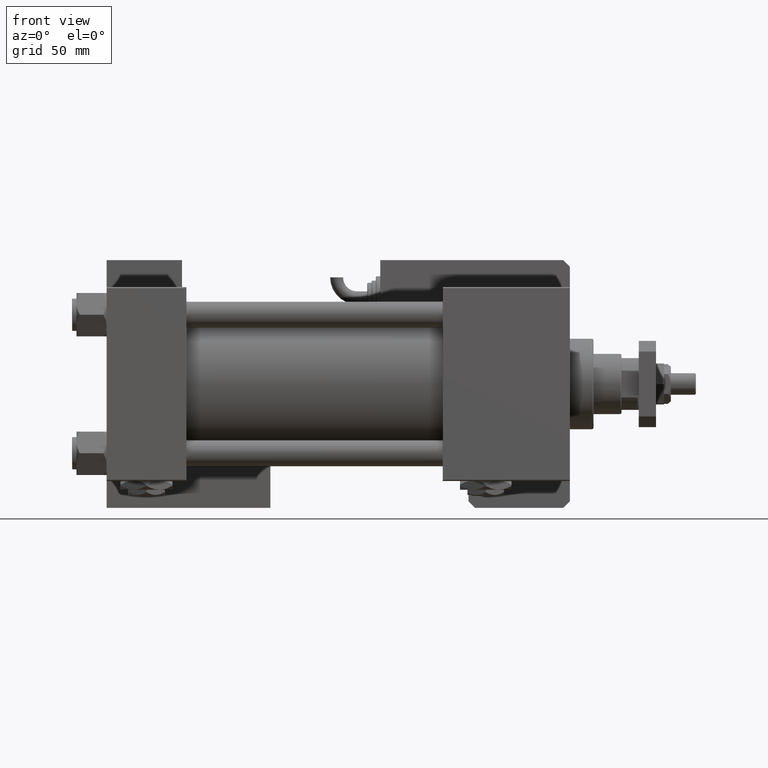
[diagram: clean part render]
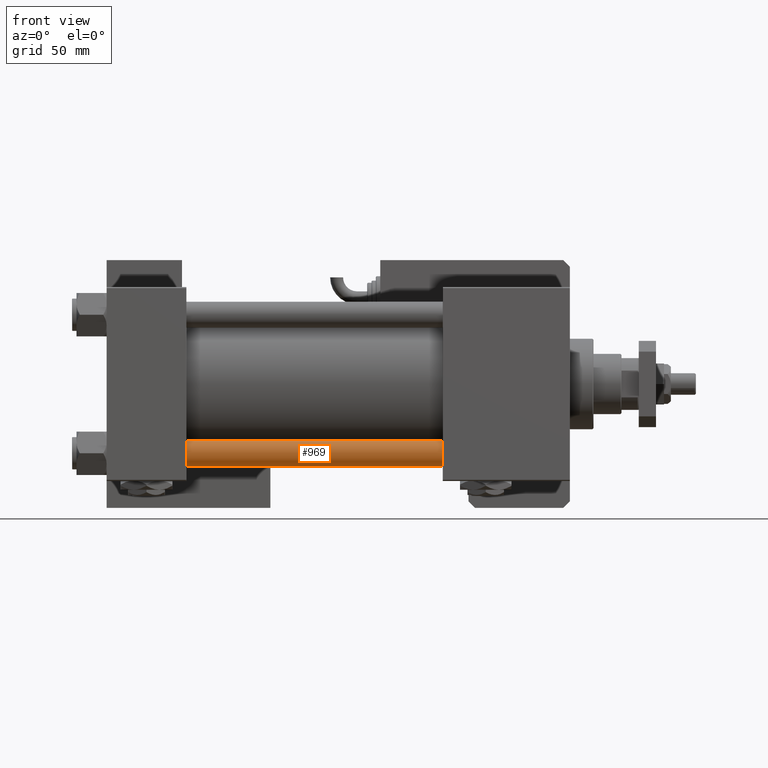
[diagram: same view with one face highlighted and labeled with its STEP entity id]
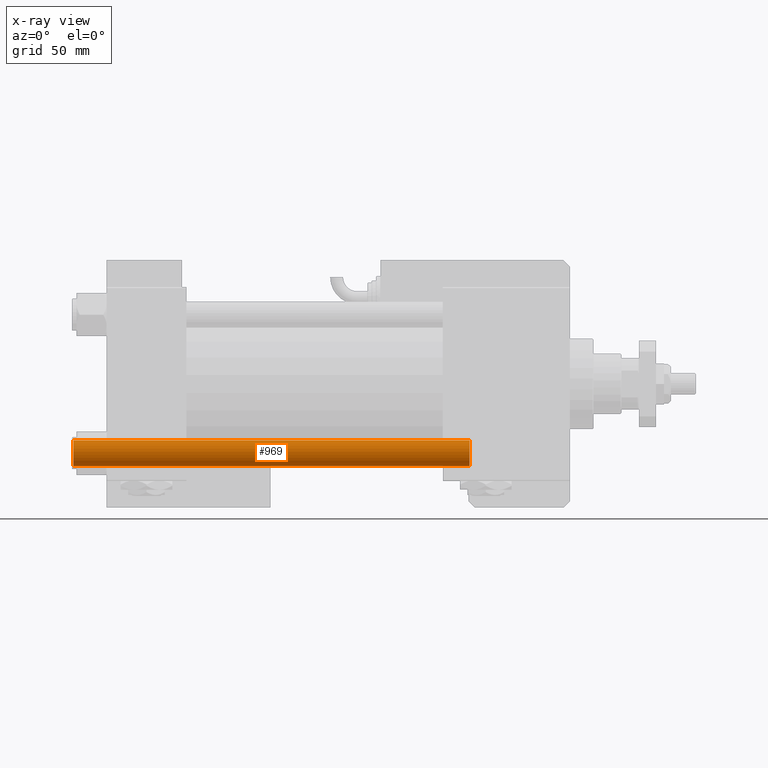
[diagram: x-ray of the same camera — body ghosted, the highlighted face saturated]
A machine part, front view. The second image highlights one B-rep face of the part: STEP entity #969.
The next image is the same camera in x-ray: the body ghosted, the highlighted face saturated — about 0% of this face is hidden behind the body in this view.
In plain terms, the highlighted cylindrical surface (edge-blend (fillet) strip) has radius 6 mm, axis along (-1, 0, -0).
Its self-contained STEP definition (entity closure, byte-faithful):
#273 = EDGE_CURVE ( 'NONE', #46230, #4033, #28328, .T. ) ;
#969 = ADVANCED_FACE ( 'NONE', ( #57112 ), #3448, .T. ) ;
#1033 = VECTOR ( 'NONE', #37409, 1000.000000000000000 ) ;
#1636 = CARTESIAN_POINT ( 'NONE',  ( 6.000000000000000888, 7.347880794884120722E-16, 185.0000000000000000 ) ) ;
#3239 = CARTESIAN_POINT ( 'NONE',  ( -6.000000000000000888, 0.000000000000000000, 184.5000000000000000 ) ) ;
#3448 = CYLINDRICAL_SURFACE ( 'NONE', #49821, 6.000000000000000888 ) ;
#3942 = ORIENTED_EDGE ( 'NONE', *, *, #21996, .T. ) ;
#4033 = VERTEX_POINT ( 'NONE', #22711 ) ;
#9245 = DIRECTION ( 'NONE',  ( -0.000000000000000000, -0.000000000000000000, 1.000000000000000000 ) ) ;
#10442 = AXIS2_PLACEMENT_3D ( 'NONE', #48847, #9245, #13348 ) ;
#11071 = EDGE_LOOP ( 'NONE', ( #3942, #42876, #15943, #24573 ) ) ;
#13348 = DIRECTION ( 'NONE',  ( 1.000000000000000000, 0.000000000000000000, 0.000000000000000000 ) ) ;
#14567 = EDGE_CURVE ( 'NONE', #46623, #27695, #48380, .T. ) ;
#15943 = ORIENTED_EDGE ( 'NONE', *, *, #34304, .T. ) ;
#21996 = EDGE_CURVE ( 'NONE', #46623, #46230, #50328, .T. ) ;
#22237 = CARTESIAN_POINT ( 'NONE',  ( -6.000000000000000888, 0.000000000000000000, 185.0000000000000000 ) ) ;
#22711 = CARTESIAN_POINT ( 'NONE',  ( 6.000000000000000888, 7.347880794884120722E-16, 0.5000000000000281997 ) ) ;
#24573 = ORIENTED_EDGE ( 'NONE', *, *, #14567, .F. ) ;
#26016 = DIRECTION ( 'NONE',  ( -0.000000000000000000, -0.000000000000000000, -1.000000000000000000 ) ) ;
#27695 = VERTEX_POINT ( 'NONE', #28664 ) ;
#28328 = LINE ( 'NONE', #1636, #1033 ) ;
#28664 = CARTESIAN_POINT ( 'NONE',  ( -6.000000000000000888, 0.000000000000000000, 0.5000000000000281997 ) ) ;
#29127 = CARTESIAN_POINT ( 'NONE',  ( 6.000000000000000888, 7.347880794884120722E-16, 184.5000000000000000 ) ) ;
#32713 = DIRECTION ( 'NONE',  ( 0.000000000000000000, 0.000000000000000000, -1.000000000000000000 ) ) ;
#34304 = EDGE_CURVE ( 'NONE', #4033, #27695, #37552, .T. ) ;
#34814 = DIRECTION ( 'NONE',  ( -1.000000000000000000, 0.000000000000000000, 0.000000000000000000 ) ) ;
#37409 = DIRECTION ( 'NONE',  ( -0.000000000000000000, -0.000000000000000000, -1.000000000000000000 ) ) ;
#37552 = CIRCLE ( 'NONE', #10442, 6.000000000000000888 ) ;
#37736 = VECTOR ( 'NONE', #58030, 1000.000000000000000 ) ;
#38257 = CARTESIAN_POINT ( 'NONE',  ( 0.000000000000000000, 0.000000000000000000, 184.5000000000000000 ) ) ;
#41862 = AXIS2_PLACEMENT_3D ( 'NONE', #38257, #32713, #45939 ) ;
#42876 = ORIENTED_EDGE ( 'NONE', *, *, #273, .T. ) ;
#43354 = CARTESIAN_POINT ( 'NONE',  ( 0.000000000000000000, 0.000000000000000000, 185.0000000000000000 ) ) ;
#45939 = DIRECTION ( 'NONE',  ( 1.000000000000000000, 0.000000000000000000, 0.000000000000000000 ) ) ;
#46230 = VERTEX_POINT ( 'NONE', #29127 ) ;
#46623 = VERTEX_POINT ( 'NONE', #3239 ) ;
#48380 = LINE ( 'NONE', #22237, #37736 ) ;
#48847 = CARTESIAN_POINT ( 'NONE',  ( 0.000000000000000000, 0.000000000000000000, 0.5000000000000281997 ) ) ;
#49821 = AXIS2_PLACEMENT_3D ( 'NONE', #43354, #26016, #34814 ) ;
#50328 = CIRCLE ( 'NONE', #41862, 6.000000000000000888 ) ;
#57112 = FACE_OUTER_BOUND ( 'NONE', #11071, .T. ) ;
#58030 = DIRECTION ( 'NONE',  ( -0.000000000000000000, -0.000000000000000000, -1.000000000000000000 ) ) ;